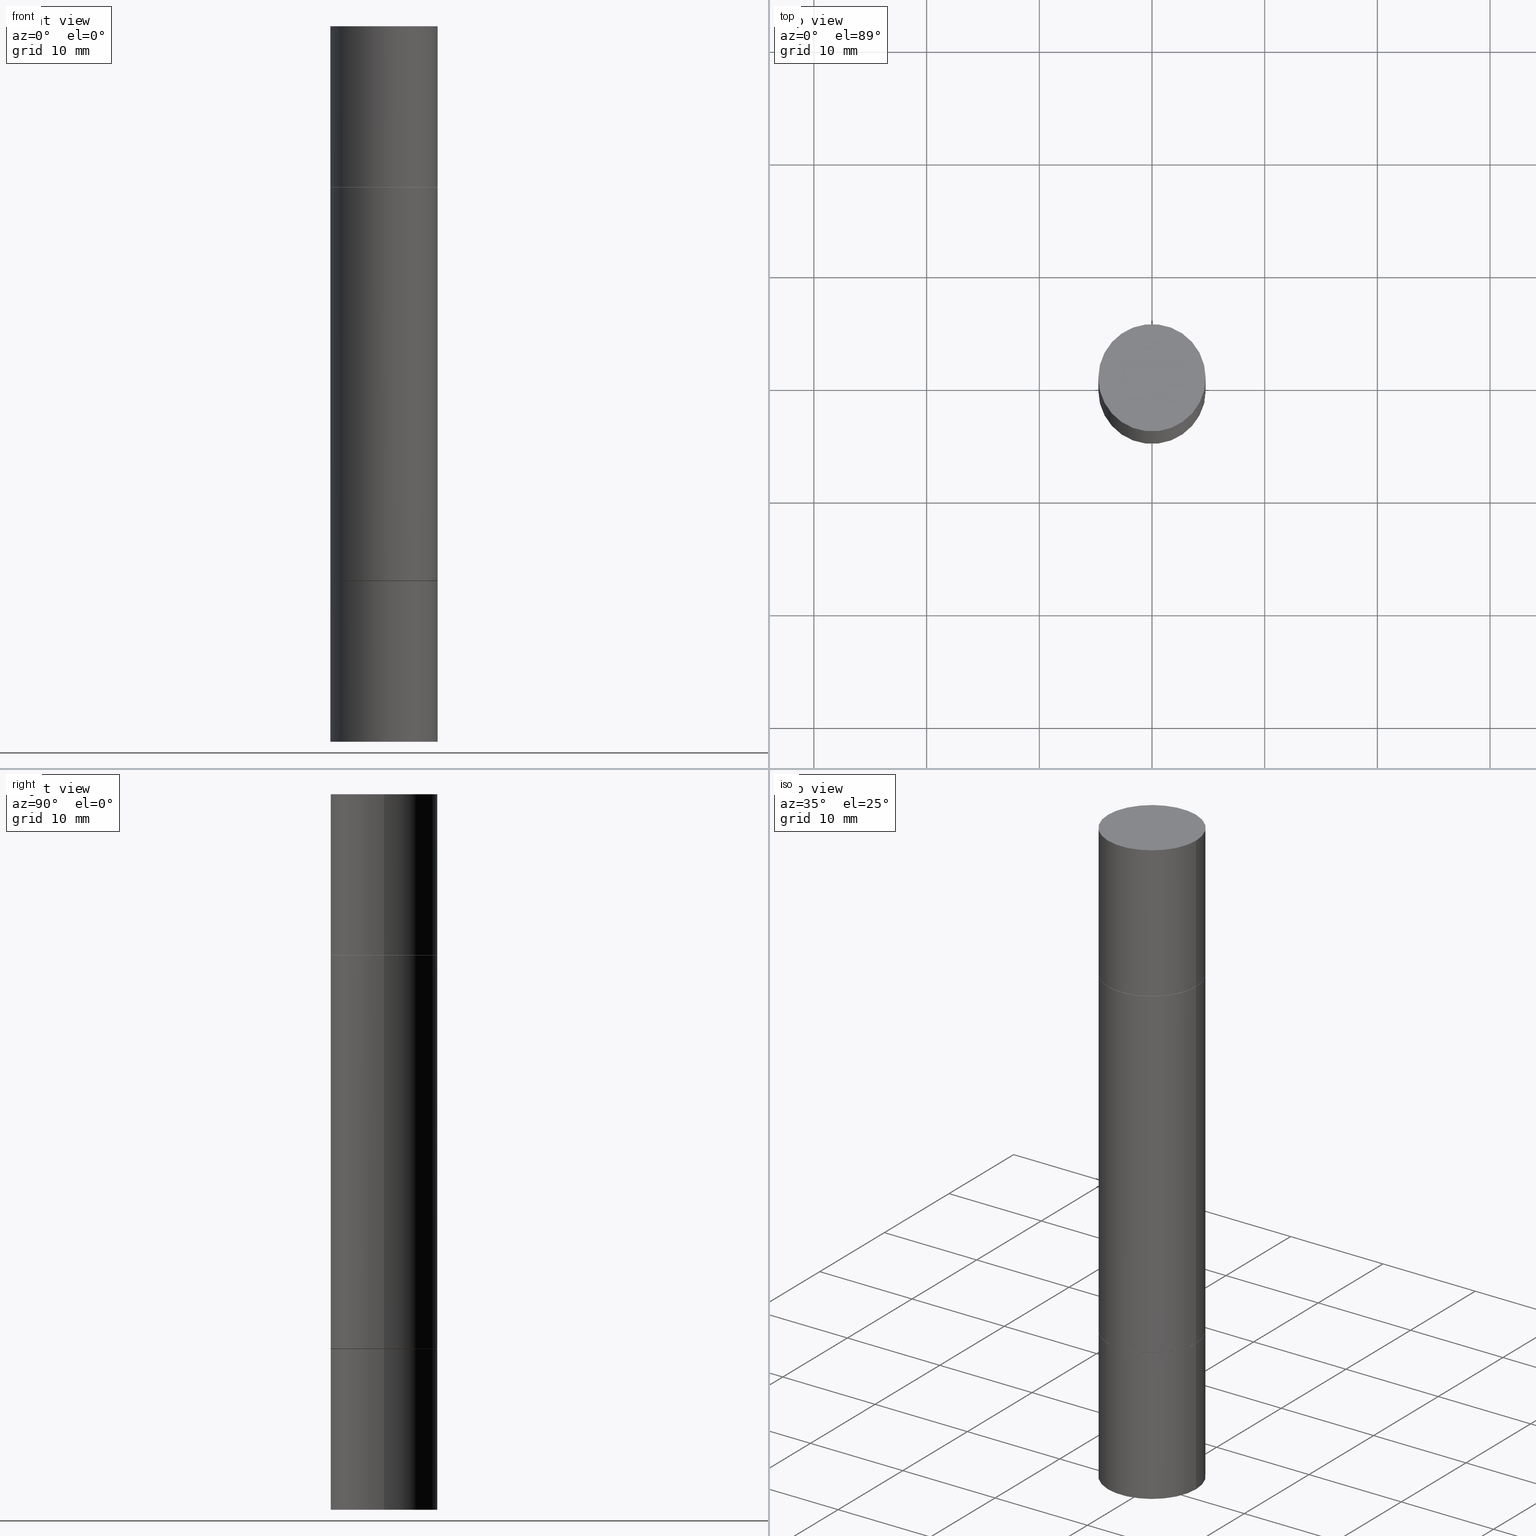
[diagram: canonical four-view strip — front | top / right | iso, engineering-drawing reading convention]
A machine part, canonical four-view strip (front | top / right | iso — engineering-drawing reading convention). The complete STEP part file that produces these views, byte-faithful:
ISO-10303-21;
HEADER;
FILE_DESCRIPTION (( 'STEP AP203' ),
    '1' );
FILE_NAME ('39635.STEP',
    '2024-03-04T15:43:39',
    ( '' ),
    ( '' ),
    'SwSTEP 2.0',
    'SolidWorks 2023',
    '' );
FILE_SCHEMA (( 'CONFIG_CONTROL_DESIGN' ));
ENDSEC;

DATA;
#1 = CC_DESIGN_PERSON_AND_ORGANIZATION_ASSIGNMENT ( #303, #198, ( #389 ) ) ;
#2 = DATE_AND_TIME ( #300, #172 ) ;
#3 = CIRCLE ( 'NONE', #654, 0.1875000000000000278 ) ;
#4 = CC_DESIGN_APPROVAL ( #194, ( #113 ) ) ;
#5 = CARTESIAN_POINT ( 'NONE',  ( 4.739318546386794397E-29, -1.961243070406324635E-15, -0.5619999999999996110 ) ) ;
#6 = DIRECTION ( 'NONE',  ( 1.000000000000000000, -6.982962677686266711E-15, 0.000000000000000000 ) ) ;
#7 = PERSON ( 'UNSPECIFIED', 'UNSPECIFIED', 'UNSPECIFIED', ('UNSPECIFIED'), ('UNSPECIFIED'), ('UNSPECIFIED') ) ;
#8 = DIRECTION ( 'NONE',  ( 1.000000000000000000, -6.982962677686265922E-15, 9.839502134516470631E-33 ) ) ;
#9 = ORIENTED_EDGE ( 'NONE', *, *, #203, .F. ) ;
#10 = ADVANCED_FACE ( 'NONE', ( #595 ), #155, .T. ) ;
#11 = PLANE ( 'NONE',  #585 ) ;
#12 = ORIENTED_EDGE ( 'NONE', *, *, #46, .F. ) ;
#13 = DIRECTION ( 'NONE',  ( -2.445468806185136597E-29, 3.491481338843145583E-15, 1.000000000000000000 ) ) ;
#14 = PERSON_AND_ORGANIZATION_ROLE ( 'creator' ) ;
#15 = CIRCLE ( 'NONE', #492, 0.1875000000000000278 ) ;
#16 = AXIS2_PLACEMENT_3D ( 'NONE', #574, #679, #201 ) ;
#17 = FACE_OUTER_BOUND ( 'NONE', #320, .T. ) ;
#18 = AXIS2_PLACEMENT_3D ( 'NONE', #258, #71, #649 ) ;
#19 = ORIENTED_EDGE ( 'NONE', *, *, #60, .T. ) ;
#20 = LINE ( 'NONE', #220, #400 ) ;
#21 = ADVANCED_FACE ( 'NONE', ( #266 ), #486, .T. ) ;
#22 = DIRECTION ( 'NONE',  ( -2.438088387897959769E-29, -3.492890411551753071E-15, -1.000000000000000000 ) ) ;
#23 = DIRECTION ( 'NONE',  ( 1.000000000000000000, -6.982962677686269077E-15, 0.000000000000000000 ) ) ;
#24 = CARTESIAN_POINT ( 'NONE',  ( 0.000000000000000000, -8.730464687993621641E-15, -2.499999999999999556 ) ) ;
#25 = DIRECTION ( 'NONE',  ( 1.000000000000000000, -6.982962677686266711E-15, 0.000000000000000000 ) ) ;
#26 = DIRECTION ( 'NONE',  ( 0.000000000000000000, 0.000000000000000000, 1.000000000000000000 ) ) ;
#27 = EDGE_CURVE ( 'NONE', #116, #260, #521, .T. ) ;
#28 = DIRECTION ( 'NONE',  ( 2.445468806185136597E-29, 3.492890411551752677E-15, 1.000000000000000000 ) ) ;
#29 = CARTESIAN_POINT ( 'NONE',  ( 1.309305502066222340E-15, 0.1874999999999980294, -0.5620000000000004992 ) ) ;
#30 = AXIS2_PLACEMENT_3D ( 'NONE', #441, #238, #569 ) ;
#31 = ORGANIZATION ( 'UNSPECIFIED', 'UNSPECIFIED', '' ) ;
#32 = AXIS2_PLACEMENT_3D ( 'NONE', #24, #478, #653 ) ;
#33 = DIRECTION ( 'NONE',  ( 1.000000000000000000, -6.982962677686265922E-15, 0.000000000000000000 ) ) ;
#34 = CARTESIAN_POINT ( 'NONE',  ( 4.736873077580609355E-29, -1.964735960817877172E-15, -0.5629999999999997229 ) ) ;
#35 = EDGE_CURVE ( 'NONE', #518, #119, #122, .T. ) ;
#36 = DIRECTION ( 'NONE',  ( -0.7071067811865353603, 7.493145998870309984E-15, 0.7071067811865595631 ) ) ;
#37 = DIRECTION ( 'NONE',  ( 1.000000000000000000, -6.982962677686265922E-15, 4.876176775795935793E-29 ) ) ;
#38 = EDGE_LOOP ( 'NONE', ( #208, #278, #540, #476 ) ) ;
#39 = VERTEX_POINT ( 'NONE', #82 ) ;
#40 = VERTEX_POINT ( 'NONE', #139 ) ;
#41 = ORIENTED_EDGE ( 'NONE', *, *, #163, .T. ) ;
#42 = CIRCLE ( 'NONE', #161, 0.1875000000000000278 ) ;
#43 = VECTOR ( 'NONE', #329, 39.37007874015748854 ) ;
#44 = CARTESIAN_POINT ( 'NONE',  ( 6.113672015462842613E-29, 1.761340885760521790E-18, 5.463695987328526437E-16 ) ) ;
#45 = DIRECTION ( 'NONE',  ( 2.438088387897959769E-29, 3.492890411551753071E-15, 1.000000000000000000 ) ) ;
#46 = EDGE_CURVE ( 'NONE', #601, #40, #138, .T. ) ;
#47 = ORIENTED_EDGE ( 'NONE', *, *, #90, .T. ) ;
#48 = CARTESIAN_POINT ( 'NONE',  ( 0.000000000000000000, -8.730464687993621641E-15, -2.499999999999999556 ) ) ;
#49 = AXIS2_PLACEMENT_3D ( 'NONE', #493, #497, #37 ) ;
#50 = ADVANCED_FACE ( 'NONE', ( #395 ), #504, .T. ) ;
#51 = CIRCLE ( 'NONE', #366, 0.1875000000000000278 ) ;
#52 = CARTESIAN_POINT ( 'NONE',  ( -0.1875000000000000278, -6.415329461342752645E-15, -1.937999999999999945 ) ) ;
#53 = DIRECTION ( 'NONE',  ( 1.000000000000000000, -6.982962677686266711E-15, 0.000000000000000000 ) ) ;
#54 = DIRECTION ( 'NONE',  ( 1.000000000000000000, -6.982962677686266711E-15, 0.000000000000000000 ) ) ;
#55 = ORIENTED_EDGE ( 'NONE', *, *, #222, .F. ) ;
#56 = CARTESIAN_POINT ( 'NONE',  ( 0.1874999999999999167, -4.473849319252078646E-15, -1.249999999999999778 ) ) ;
#57 = CONICAL_SURFACE ( 'NONE', #30, 0.1864999999999999714, 0.7853981633974311816 ) ;
#58 = LOCAL_TIME ( 10, 43, 39.00000000000000000, #349 ) ;
#59 = CLOSED_SHELL ( 'NONE', ( #490, #274, #407, #643 ) ) ;
#60 = EDGE_CURVE ( 'NONE', #549, #333, #135, .T. ) ;
#61 = DIRECTION ( 'NONE',  ( 2.445468806185136597E-29, 3.492890411551752677E-15, 1.000000000000000000 ) ) ;
#62 = EDGE_LOOP ( 'NONE', ( #636, #252 ) ) ;
#63 = ADVANCED_FACE ( 'NONE', ( #560 ), #451, .T. ) ;
#64 = DIRECTION ( 'NONE',  ( -2.445468806185136597E-29, 3.491481338843145583E-15, 1.000000000000000000 ) ) ;
#65 = ORIENTED_EDGE ( 'NONE', *, *, #396, .F. ) ;
#66 = FACE_OUTER_BOUND ( 'NONE', #368, .T. ) ;
#67 = CIRCLE ( 'NONE', #502, 0.1875000000000000278 ) ;
#68 = ADVANCED_FACE ( 'NONE', ( #145 ), #346, .T. ) ;
#69 = AXIS2_PLACEMENT_3D ( 'NONE', #437, #177, #354 ) ;
#70 = APPLICATION_PROTOCOL_DEFINITION ( 'international standard', 'config_control_design', 1994, #673 ) ;
#71 = DIRECTION ( 'NONE',  ( -0.000000000000000000, -3.492185875197449130E-15, -1.000000000000000000 ) ) ;
#72 = VERTEX_POINT ( 'NONE', #408 ) ;
#73 = DIRECTION ( 'NONE',  ( 2.445468806185136597E-29, 3.492890411551752677E-15, 1.000000000000000000 ) ) ;
#74 = DIRECTION ( 'NONE',  ( 1.000000000000000000, -6.982962677686270655E-15, 0.000000000000000000 ) ) ;
#75 = FACE_OUTER_BOUND ( 'NONE', #481, .T. ) ;
#76 = FACE_OUTER_BOUND ( 'NONE', #316, .T. ) ;
#77 = LINE ( 'NONE', #607, #43 ) ;
#78 = PERSON_AND_ORGANIZATION ( #7, #31 ) ;
#79 = PRODUCT_DEFINITION_FORMATION_WITH_SPECIFIED_SOURCE ( 'ANY', '', #389, .NOT_KNOWN. ) ;
#80 = CIRCLE ( 'NONE', #18, 0.1874999999999999167 ) ;
#81 = ORIENTED_EDGE ( 'NONE', *, *, #230, .F. ) ;
#82 = CARTESIAN_POINT ( 'NONE',  ( 0.1875000000000000278, -8.072304855405348046E-15, -1.936999999999999833 ) ) ;
#83 = CARTESIAN_POINT ( 'NONE',  ( -0.1864999999999999714, -5.441328632485429205E-15, -1.937999999999999945 ) ) ;
#84 = CARTESIAN_POINT ( 'NONE',  ( -0.1875000000000000278, 3.066025098218802702E-16, 5.463695987328561936E-16 ) ) ;
#85 = CARTESIAN_POINT ( 'NONE',  ( -0.1864999999999999714, -6.800763900288241472E-16, -0.5619999999999996110 ) ) ;
#86 = EDGE_CURVE ( 'NONE', #337, #307, #107, .T. ) ;
#87 =( NAMED_UNIT ( * ) PLANE_ANGLE_UNIT ( ) SI_UNIT ( $, .RADIAN. ) );
#88 = ORIENTED_EDGE ( 'NONE', *, *, #409, .T. ) ;
#89 = DIRECTION ( 'NONE',  ( 2.445468806185136597E-29, 3.492890411551752677E-15, 1.000000000000000000 ) ) ;
#90 = EDGE_CURVE ( 'NONE', #565, #237, #15, .T. ) ;
#91 = VERTEX_POINT ( 'NONE', #204 ) ;
#92 = CIRCLE ( 'NONE', #261, 0.1875000000000000278 ) ;
#93 = ORIENTED_EDGE ( 'NONE', *, *, #324, .F. ) ;
#94 = DIRECTION ( 'NONE',  ( 2.438088387897959769E-29, 3.492890411551753071E-15, 1.000000000000000000 ) ) ;
#95 = PERSON_AND_ORGANIZATION ( #7, #31 ) ;
#96 = CARTESIAN_POINT ( 'NONE',  ( 4.739318546386794397E-29, -6.766490834678016045E-15, -1.937999999999999945 ) ) ;
#97 = ORIENTED_EDGE ( 'NONE', *, *, #90, .F. ) ;
#98 = CARTESIAN_POINT ( 'NONE',  ( 0.1874999999999999167, -1.003977019005979665E-14, -2.499999999999999556 ) ) ;
#99 = VERTEX_POINT ( 'NONE', #243 ) ;
#100 = CIRCLE ( 'NONE', #479, 0.1875000000000000278 ) ;
#101 = AXIS2_PLACEMENT_3D ( 'NONE', #185, #281, #515 ) ;
#102 = AXIS2_PLACEMENT_3D ( 'NONE', #265, #359, #582 ) ;
#103 = ORIENTED_EDGE ( 'NONE', *, *, #623, .T. ) ;
#104 = CARTESIAN_POINT ( 'NONE',  ( 4.736873077580609355E-29, -1.964735960817877172E-15, -0.5629999999999997229 ) ) ;
#105 = DIRECTION ( 'NONE',  ( 1.000000000000000000, -6.982962677686266711E-15, 0.000000000000000000 ) ) ;
#106 = PLANE ( 'NONE',  #174 ) ;
#107 = LINE ( 'NONE', #356, #296 ) ;
#108 = COORDINATED_UNIVERSAL_TIME_OFFSET ( 5, 0, .BEHIND. ) ;
#109 = EDGE_CURVE ( 'NONE', #181, #590, #253, .T. ) ;
#110 = ORIENTED_EDGE ( 'NONE', *, *, #571, .F. ) ;
#111 = FACE_OUTER_BOUND ( 'NONE', #550, .T. ) ;
#112 = CIRCLE ( 'NONE', #547, 0.1864999999999999714 ) ;
#113 = SECURITY_CLASSIFICATION ( '', '', #489 ) ;
#114 = AXIS2_PLACEMENT_3D ( 'NONE', #367, #432, #218 ) ;
#115 = ADVANCED_FACE ( 'NONE', ( #658 ), #548, .T. ) ;
#116 = VERTEX_POINT ( 'NONE', #165 ) ;
#117 = DIRECTION ( 'NONE',  ( 1.000000000000000000, -6.982962677686269077E-15, 0.000000000000000000 ) ) ;
#118 = DATE_AND_TIME ( #589, #512 ) ;
#119 = VERTEX_POINT ( 'NONE', #209 ) ;
#120 = ADVANCED_FACE ( 'NONE', ( #371 ), #572, .T. ) ;
#121 = CARTESIAN_POINT ( 'NONE',  ( 4.739318546386794397E-29, -6.766490834678016045E-15, -1.937999999999999945 ) ) ;
#122 = LINE ( 'NONE', #382, #225 ) ;
#123 = DIRECTION ( 'NONE',  ( 1.000000000000000000, 0.000000000000000000, 0.000000000000000000 ) ) ;
#124 = CARTESIAN_POINT ( 'NONE',  ( 1.309305502066222340E-15, 0.1874999999999932554, -1.938000000000000389 ) ) ;
#125 = AXIS2_PLACEMENT_3D ( 'NONE', #439, #474, #136 ) ;
#126 = CARTESIAN_POINT ( 'NONE',  ( 4.736873077580609355E-29, -6.762999353339172249E-15, -1.936999999999999833 ) ) ;
#127 = PERSON_AND_ORGANIZATION ( #7, #31 ) ;
#128 = DIRECTION ( 'NONE',  ( 1.000000000000000000, -6.982962677686265922E-15, 4.876176775795935793E-29 ) ) ;
#129 = CARTESIAN_POINT ( 'NONE',  ( 4.739318546386794397E-29, -1.961243070406324635E-15, -0.5619999999999996110 ) ) ;
#130 = DIRECTION ( 'NONE',  ( -0.7071067811865353603, 2.381258160591140710E-15, -0.7071067811865595631 ) ) ;
#131 = ADVANCED_FACE ( 'NONE', ( #17 ), #216, .T. ) ;
#132 = CARTESIAN_POINT ( 'NONE',  ( 4.739318546386794397E-29, -1.961243070406324635E-15, -0.5619999999999996110 ) ) ;
#133 = DIRECTION ( 'NONE',  ( -2.445468806185136597E-29, -3.492890411551752677E-15, -1.000000000000000000 ) ) ;
#134 = DIRECTION ( 'NONE',  ( 1.000000000000000000, -6.982962677686266711E-15, 0.000000000000000000 ) ) ;
#135 = LINE ( 'NONE', #234, #482 ) ;
#136 = DIRECTION ( 'NONE',  ( 0.000000000000000000, 1.000000000000000000, -3.492185875197449524E-15 ) ) ;
#137 = CIRCLE ( 'NONE', #270, 0.1864999999999999714 ) ;
#138 = CIRCLE ( 'NONE', #622, 0.1875000000000000278 ) ;
#139 = CARTESIAN_POINT ( 'NONE',  ( 0.1875000000000000278, -1.307544161180414563E-15, 5.463695987328526437E-16 ) ) ;
#140 = EDGE_LOOP ( 'NONE', ( #618, #65, #634, #645 ) ) ;
#141 = DIRECTION ( 'NONE',  ( -2.445468806185136877E-29, -3.492890411551753071E-15, -1.000000000000000000 ) ) ;
#142 = DIRECTION ( 'NONE',  ( 1.000000000000000000, -6.982962677686266711E-15, 0.000000000000000000 ) ) ;
#143 = EDGE_LOOP ( 'NONE', ( #425, #55 ) ) ;
#144 = CC_DESIGN_DATE_AND_TIME_ASSIGNMENT ( #2, #240, ( #113 ) ) ;
#145 = FACE_OUTER_BOUND ( 'NONE', #471, .T. ) ;
#146 = AXIS2_PLACEMENT_3D ( 'NONE', #34, #659, #25 ) ;
#147 = CLOSED_SHELL ( 'NONE', ( #246, #131, #650, #214, #10, #21, #239, #555 ) ) ;
#148 = DIRECTION ( 'NONE',  ( 2.445468806185136597E-29, 3.492890411551752677E-15, 1.000000000000000000 ) ) ;
#149 = PLANE ( 'NONE',  #663 ) ;
#150 = ADVANCED_BREP_SHAPE_REPRESENTATION ( '39635', ( #564, #576, #552, #551, #579, #401 ), #426 ) ;
#151 = EDGE_CURVE ( 'NONE', #565, #369, #434, .T. ) ;
#152 = PERSON_AND_ORGANIZATION ( #7, #31 ) ;
#153 = ORIENTED_EDGE ( 'NONE', *, *, #199, .T. ) ;
#154 = AXIS2_PLACEMENT_3D ( 'NONE', #566, #269, #176 ) ;
#155 = CONICAL_SURFACE ( 'NONE', #347, 0.1864999999999999714, 0.7853981633974311816 ) ;
#156 = ORIENTED_EDGE ( 'NONE', *, *, #248, .T. ) ;
#157 = CARTESIAN_POINT ( 'NONE',  ( 0.000000000000000000, 0.000000000000000000, 0.000000000000000000 ) ) ;
#158 = PRODUCT_DEFINITION ( 'UNKNOWN', '', #79, #640 ) ;
#159 = ORIENTED_EDGE ( 'NONE', *, *, #376, .F. ) ;
#160 = CARTESIAN_POINT ( 'NONE',  ( 0.1875000000000000278, -3.274041462884052574E-15, -0.5629999999999997229 ) ) ;
#161 = AXIS2_PLACEMENT_3D ( 'NONE', #126, #454, #54 ) ;
#162 = DIRECTION ( 'NONE',  ( -1.000000000000000000, 6.982962677686265922E-15, -4.876176775795935793E-29 ) ) ;
#163 = EDGE_CURVE ( 'NONE', #116, #565, #655, .T. ) ;
#164 = ORIENTED_EDGE ( 'NONE', *, *, #571, .T. ) ;
#165 = CARTESIAN_POINT ( 'NONE',  ( -0.1864999999999999714, -6.800763900288241472E-16, -0.5619999999999996110 ) ) ;
#166 = ORIENTED_EDGE ( 'NONE', *, *, #469, .T. ) ;
#167 = DIRECTION ( 'NONE',  ( -2.445468806185136877E-29, -3.492890411551753071E-15, -1.000000000000000000 ) ) ;
#168 = CARTESIAN_POINT ( 'NONE',  ( -0.1874999999999999722, -3.078008298971767937E-15, -1.936999999999999833 ) ) ;
#169 = APPROVAL_DATE_TIME ( #625, #330 ) ;
#170 = DIRECTION ( 'NONE',  ( 1.000000000000000000, -6.982962677686265922E-15, 0.000000000000000000 ) ) ;
#171 = AXIS2_PLACEMENT_3D ( 'NONE', #5, #358, #415 ) ;
#172 = LOCAL_TIME ( 10, 43, 39.00000000000000000, #108 ) ;
#173 = DIRECTION ( 'NONE',  ( 1.000000000000000000, -6.982962677686269077E-15, 0.000000000000000000 ) ) ;
#174 = AXIS2_PLACEMENT_3D ( 'NONE', #519, #306, #8 ) ;
#175 = EDGE_CURVE ( 'NONE', #260, #237, #77, .T. ) ;
#176 = DIRECTION ( 'NONE',  ( 1.000000000000000000, -6.982962677686265922E-15, 0.000000000000000000 ) ) ;
#177 = DIRECTION ( 'NONE',  ( -2.445468806185136597E-29, -3.492890411551752677E-15, -1.000000000000000000 ) ) ;
#178 = CYLINDRICAL_SURFACE ( 'NONE', #49, 0.1875000000000000278 ) ;
#179 = EDGE_LOOP ( 'NONE', ( #453, #206, #275, #616 ) ) ;
#180 = CC_DESIGN_PERSON_AND_ORGANIZATION_ASSIGNMENT ( #78, #498, ( #79 ) ) ;
#181 = VERTEX_POINT ( 'NONE', #652 ) ;
#182 = DIRECTION ( 'NONE',  ( 1.000000000000000000, -6.982962677686269077E-15, 0.000000000000000000 ) ) ;
#183 = ORIENTED_EDGE ( 'NONE', *, *, #27, .T. ) ;
#184 = ORIENTED_EDGE ( 'NONE', *, *, #287, .F. ) ;
#185 = CARTESIAN_POINT ( 'NONE',  ( 3.056836007731420185E-29, -4.364351673553931682E-15, -1.249999999999999778 ) ) ;
#186 = AXIS2_PLACEMENT_3D ( 'NONE', #418, #215, #173 ) ;
#187 = FACE_OUTER_BOUND ( 'NONE', #207, .T. ) ;
#188 = AXIS2_PLACEMENT_3D ( 'NONE', #545, #224, #660 ) ;
#189 = DIRECTION ( 'NONE',  ( -2.445468806185136597E-29, -3.492890411551752677E-15, -1.000000000000000000 ) ) ;
#190 = EDGE_CURVE ( 'NONE', #237, #565, #609, .T. ) ;
#191 = CIRCLE ( 'NONE', #114, 0.1875000000000000278 ) ;
#192 = VERTEX_POINT ( 'NONE', #56 ) ;
#193 = ORIENTED_EDGE ( 'NONE', *, *, #611, .F. ) ;
#194 = APPROVAL ( #462, 'UNSPECIFIED' ) ;
#195 = DIRECTION ( 'NONE',  ( -2.445468806185136597E-29, -3.492890411551752677E-15, -1.000000000000000000 ) ) ;
#196 = APPROVAL_ROLE ( '' ) ;
#197 = VECTOR ( 'NONE', #420, 39.37007874015748143 ) ;
#198 = PERSON_AND_ORGANIZATION_ROLE ( 'design_owner' ) ;
#199 = EDGE_CURVE ( 'NONE', #648, #72, #100, .T. ) ;
#200 = CALENDAR_DATE ( 2024, 4, 3 ) ;
#201 = DIRECTION ( 'NONE',  ( 1.000000000000000000, -6.982962677686265922E-15, 4.876176775795935793E-29 ) ) ;
#202 = AXIS2_PLACEMENT_3D ( 'NONE', #615, #302, #142 ) ;
#203 = EDGE_CURVE ( 'NONE', #72, #648, #191, .T. ) ;
#204 = CARTESIAN_POINT ( 'NONE',  ( -0.1875000000000000278, 3.066025098218802702E-16, -0.5619999999999996110 ) ) ;
#205 = DIRECTION ( 'NONE',  ( 1.000000000000000000, -6.982962677686269077E-15, 0.000000000000000000 ) ) ;
#206 = ORIENTED_EDGE ( 'NONE', *, *, #464, .T. ) ;
#207 = EDGE_LOOP ( 'NONE', ( #348, #93 ) ) ;
#208 = ORIENTED_EDGE ( 'NONE', *, *, #516, .F. ) ;
#209 = CARTESIAN_POINT ( 'NONE',  ( -0.1874999999999999167, -1.878200442603741470E-15, -1.249999999999999778 ) ) ;
#210 = CARTESIAN_POINT ( 'NONE',  ( 0.1864999999999999714, -3.263565609794813629E-15, -0.5619999999999996110 ) ) ;
#211 = VECTOR ( 'NONE', #167, 39.37007874015748143 ) ;
#212 = CC_DESIGN_SECURITY_CLASSIFICATION ( #113, ( #79 ) ) ;
#213 = VECTOR ( 'NONE', #130, 39.37007874015748854 ) ;
#214 = ADVANCED_FACE ( 'NONE', ( #314 ), #106, .F. ) ;
#215 = DIRECTION ( 'NONE',  ( 2.445468806185136597E-29, 3.492890411551752677E-15, 1.000000000000000000 ) ) ;
#216 = CYLINDRICAL_SURFACE ( 'NONE', #325, 0.1874999999999999167 ) ;
#217 = ORIENTED_EDGE ( 'NONE', *, *, #86, .T. ) ;
#218 = DIRECTION ( 'NONE',  ( 1.000000000000000000, -6.982962677686266711E-15, 0.000000000000000000 ) ) ;
#219 = ORIENTED_EDGE ( 'NONE', *, *, #510, .F. ) ;
#220 = CARTESIAN_POINT ( 'NONE',  ( 0.1864999999999999714, -3.263565609794813629E-15, -0.5619999999999996110 ) ) ;
#221 = DIRECTION ( 'NONE',  ( 1.000000000000000000, -6.982962677686265922E-15, 9.839502134516470631E-33 ) ) ;
#222 = EDGE_CURVE ( 'NONE', #570, #257, #677, .T. ) ;
#223 = CIRCLE ( 'NONE', #154, 0.1875000000000000278 ) ;
#224 = DIRECTION ( 'NONE',  ( 2.445468806185136597E-29, 3.492890411551752677E-15, 1.000000000000000000 ) ) ;
#225 = VECTOR ( 'NONE', #544, 39.37007874015748143 ) ;
#226 = CC_DESIGN_PERSON_AND_ORGANIZATION_ASSIGNMENT ( #360, #289, ( #113 ) ) ;
#227 = ORIENTED_EDGE ( 'NONE', *, *, #510, .T. ) ;
#228 = LINE ( 'NONE', #438, #435 ) ;
#229 = ORIENTED_EDGE ( 'NONE', *, *, #175, .F. ) ;
#230 = EDGE_CURVE ( 'NONE', #590, #181, #51, .T. ) ;
#231 = CARTESIAN_POINT ( 'NONE',  ( 4.736873077580609355E-29, -6.762999353339172249E-15, -1.936999999999999833 ) ) ;
#232 = FACE_OUTER_BOUND ( 'NONE', #514, .T. ) ;
#233 = CIRCLE ( 'NONE', #171, 0.1875000000000000278 ) ;
#234 = CARTESIAN_POINT ( 'NONE',  ( -0.1875000000000000278, -7.444121313411457895E-15, -2.499999999999999556 ) ) ;
#235 = APPROVAL_PERSON_ORGANIZATION ( #152, #379, #352 ) ;
#236 = AXIS2_PLACEMENT_3D ( 'NONE', #96, #351, #414 ) ;
#237 = VERTEX_POINT ( 'NONE', #473 ) ;
#238 = DIRECTION ( 'NONE',  ( -2.445468806185136597E-29, -3.492890411551752677E-15, -1.000000000000000000 ) ) ;
#239 = ADVANCED_FACE ( 'NONE', ( #66 ), #460, .T. ) ;
#240 = DATE_TIME_ROLE ( 'classification_date' ) ;
#241 = DIRECTION ( 'NONE',  ( -2.445468806185136597E-29, -3.492890411551752677E-15, -1.000000000000000000 ) ) ;
#242 = LINE ( 'NONE', #98, #322 ) ;
#243 = CARTESIAN_POINT ( 'NONE',  ( 0.1875000000000000278, -3.270548572472500038E-15, -0.5619999999999996110 ) ) ;
#244 = AXIS2_PLACEMENT_3D ( 'NONE', #48, #241, #463 ) ;
#245 = AXIS2_PLACEMENT_3D ( 'NONE', #121, #13, #117 ) ;
#246 = ADVANCED_FACE ( 'NONE', ( #641 ), #644, .T. ) ;
#247 = DIRECTION ( 'NONE',  ( -2.445468806185136597E-29, 3.491481338843145583E-15, 1.000000000000000000 ) ) ;
#248 = EDGE_CURVE ( 'NONE', #119, #192, #80, .T. ) ;
#249 = EDGE_LOOP ( 'NONE', ( #9, #448 ) ) ;
#250 = DIRECTION ( 'NONE',  ( 1.000000000000000000, -6.982962677686269077E-15, 0.000000000000000000 ) ) ;
#251 = VECTOR ( 'NONE', #537, 39.37007874015748143 ) ;
#252 = ORIENTED_EDGE ( 'NONE', *, *, #230, .T. ) ;
#253 = CIRCLE ( 'NONE', #236, 0.1875000000000000278 ) ;
#254 = CARTESIAN_POINT ( 'NONE',  ( 0.1864999999999999714, -3.263565609794813629E-15, -0.5619999999999996110 ) ) ;
#255 = CARTESIAN_POINT ( 'NONE',  ( -0.1875000000000000278, 1.332267629550188046E-15, -9.223003294227947991E-30 ) ) ;
#256 = LINE ( 'NONE', #587, #599 ) ;
#257 = VERTEX_POINT ( 'NONE', #377 ) ;
#258 = CARTESIAN_POINT ( 'NONE',  ( 3.056836007731420185E-29, -4.364351673553931682E-15, -1.249999999999999778 ) ) ;
#259 = DIRECTION ( 'NONE',  ( 1.000000000000000000, -6.982962677686269077E-15, 0.000000000000000000 ) ) ;
#260 = VERTEX_POINT ( 'NONE', #210 ) ;
#261 = AXIS2_PLACEMENT_3D ( 'NONE', #328, #539, #170 ) ;
#262 = MECHANICAL_CONTEXT ( 'NONE', #673, 'mechanical' ) ;
#263 = AXIS2_PLACEMENT_3D ( 'NONE', #669, #397, #339 ) ;
#264 = DIRECTION ( 'NONE',  ( 1.000000000000000000, -6.982962677686269077E-15, 0.000000000000000000 ) ) ;
#265 = CARTESIAN_POINT ( 'NONE',  ( 1.309305502066236145E-15, 0.1874999999999999722, 0.000000000000000000 ) ) ;
#266 = FACE_OUTER_BOUND ( 'NONE', #666, .T. ) ;
#267 = DIRECTION ( 'NONE',  ( -1.000000000000000000, 6.982962677686265922E-15, -9.839502134516470631E-33 ) ) ;
#268 = ADVANCED_FACE ( 'NONE', ( #319 ), #597, .F. ) ;
#269 = DIRECTION ( 'NONE',  ( 2.445468806185136597E-29, 3.492890411551752677E-15, 1.000000000000000000 ) ) ;
#270 = AXIS2_PLACEMENT_3D ( 'NONE', #129, #541, #264 ) ;
#271 = CARTESIAN_POINT ( 'NONE',  ( 0.1864999999999999714, -8.068813374066505039E-15, -1.937999999999999945 ) ) ;
#272 = LINE ( 'NONE', #455, #211 ) ;
#273 = FACE_OUTER_BOUND ( 'NONE', #671, .T. ) ;
#274 = ADVANCED_FACE ( 'NONE', ( #534 ), #416, .T. ) ;
#275 = ORIENTED_EDGE ( 'NONE', *, *, #469, .F. ) ;
#276 = VERTEX_POINT ( 'NONE', #160 ) ;
#277 = ORIENTED_EDGE ( 'NONE', *, *, #680, .T. ) ;
#278 = ORIENTED_EDGE ( 'NONE', *, *, #35, .T. ) ;
#279 = ADVANCED_FACE ( 'NONE', ( #111 ), #637, .T. ) ;
#280 = ORIENTED_EDGE ( 'NONE', *, *, #429, .F. ) ;
#281 = DIRECTION ( 'NONE',  ( -0.000000000000000000, -3.492185875197449130E-15, -1.000000000000000000 ) ) ;
#282 = CIRCLE ( 'NONE', #146, 0.1875000000000000278 ) ;
#283 = LOCAL_TIME ( 10, 43, 39.00000000000000000, #404 ) ;
#284 = DIRECTION ( 'NONE',  ( 1.000000000000000000, -6.982962677686269077E-15, 0.000000000000000000 ) ) ;
#285 = EDGE_LOOP ( 'NONE', ( #12, #475, #592, #193 ) ) ;
#286 = DIRECTION ( 'NONE',  ( 1.000000000000000000, -6.982962677686266711E-15, 0.000000000000000000 ) ) ;
#287 = EDGE_CURVE ( 'NONE', #549, #337, #92, .T. ) ;
#288 = ORIENTED_EDGE ( 'NONE', *, *, #477, .T. ) ;
#289 = PERSON_AND_ORGANIZATION_ROLE ( 'classification_officer' ) ;
#290 = CARTESIAN_POINT ( 'NONE',  ( 0.1875000000000000278, -3.270548572472500038E-15, -0.5619999999999996110 ) ) ;
#291 = PLANE ( 'NONE',  #533 ) ;
#292 = APPROVAL_STATUS ( 'not_yet_approved' ) ;
#293 = ORIENTED_EDGE ( 'NONE', *, *, #310, .F. ) ;
#294 = CC_DESIGN_PERSON_AND_ORGANIZATION_ASSIGNMENT ( #127, #538, ( #79 ) ) ;
#295 = CARTESIAN_POINT ( 'NONE',  ( 1.309305502066236145E-15, 0.1874999999999912847, -2.500000000000000444 ) ) ;
#296 = VECTOR ( 'NONE', #305, 39.37007874015748143 ) ;
#297 = VERTEX_POINT ( 'NONE', #254 ) ;
#298 = AXIS2_PLACEMENT_3D ( 'NONE', #29, #532, #267 ) ;
#299 = ADVANCED_FACE ( 'NONE', ( #187 ), #149, .F. ) ;
#300 = CALENDAR_DATE ( 2024, 4, 3 ) ;
#301 = CARTESIAN_POINT ( 'NONE',  ( 4.736873077580609355E-29, -1.964735960817877172E-15, -0.5629999999999997229 ) ) ;
#302 = DIRECTION ( 'NONE',  ( 2.445468806185136597E-29, 3.492890411551752677E-15, 1.000000000000000000 ) ) ;
#303 = PERSON_AND_ORGANIZATION ( #7, #31 ) ;
#304 = APPROVAL_DATE_TIME ( #676, #194 ) ;
#305 = DIRECTION ( 'NONE',  ( -2.445468806185136877E-29, -3.492890411551753071E-15, -1.000000000000000000 ) ) ;
#306 = DIRECTION ( 'NONE',  ( -2.438088387897959769E-29, -3.492890411551753071E-15, -1.000000000000000000 ) ) ;
#307 = VERTEX_POINT ( 'NONE', #290 ) ;
#308 = AXIS2_PLACEMENT_3D ( 'NONE', #411, #399, #105 ) ;
#309 = DIRECTION ( 'NONE',  ( -2.445468806185136597E-29, 3.491481338843145583E-15, 1.000000000000000000 ) ) ;
#310 = EDGE_CURVE ( 'NONE', #638, #297, #444, .T. ) ;
#311 = DIRECTION ( 'NONE',  ( -2.445468806185136877E-29, -3.492890411551753071E-15, -1.000000000000000000 ) ) ;
#312 = ORIENTED_EDGE ( 'NONE', *, *, #449, .T. ) ;
#313 = DIRECTION ( 'NONE',  ( -2.445468806185136597E-29, -3.492890411551752677E-15, -1.000000000000000000 ) ) ;
#314 = FACE_OUTER_BOUND ( 'NONE', #499, .T. ) ;
#315 = APPROVAL_DATE_TIME ( #118, #379 ) ;
#316 = EDGE_LOOP ( 'NONE', ( #219, #394 ) ) ;
#317 = EDGE_LOOP ( 'NONE', ( #184, #19, #594, #375 ) ) ;
#318 = DIRECTION ( 'NONE',  ( 1.000000000000000000, -6.982962677686270655E-15, 0.000000000000000000 ) ) ;
#319 = FACE_OUTER_BOUND ( 'NONE', #62, .T. ) ;
#320 = EDGE_LOOP ( 'NONE', ( #97, #393, #365, #613 ) ) ;
#321 = LINE ( 'NONE', #255, #197 ) ;
#322 = VECTOR ( 'NONE', #141, 39.37007874015748143 ) ;
#323 = DIRECTION ( 'NONE',  ( -1.000000000000000000, 6.982962677686265922E-15, -4.876176775795935793E-29 ) ) ;
#324 = EDGE_CURVE ( 'NONE', #333, #307, #424, .T. ) ;
#325 = AXIS2_PLACEMENT_3D ( 'NONE', #647, #189, #74 ) ;
#326 = PLANE ( 'NONE',  #298 ) ;
#327 = CARTESIAN_POINT ( 'NONE',  ( 0.000000000000000000, 0.000000000000000000, 0.000000000000000000 ) ) ;
#328 = CARTESIAN_POINT ( 'NONE',  ( 6.113672015462842613E-29, 1.761340885760521790E-18, 5.463695987328526437E-16 ) ) ;
#329 = DIRECTION ( 'NONE',  ( 0.7071067811865353603, -7.407546758114202791E-15, -0.7071067811865595631 ) ) ;
#330 = APPROVAL ( #292, 'UNSPECIFIED' ) ;
#331 = ORIENTED_EDGE ( 'NONE', *, *, #376, .T. ) ;
#332 = LINE ( 'NONE', #380, #251 ) ;
#333 = VERTEX_POINT ( 'NONE', #522 ) ;
#334 = DIRECTION ( 'NONE',  ( 1.000000000000000000, -6.982962677686266711E-15, 0.000000000000000000 ) ) ;
#335 = AXIS2_PLACEMENT_3D ( 'NONE', #526, #309, #205 ) ;
#336 = EDGE_CURVE ( 'NONE', #648, #590, #321, .T. ) ;
#337 = VERTEX_POINT ( 'NONE', #364 ) ;
#338 = DIRECTION ( 'NONE',  ( -2.445468806185136597E-29, -3.492890411551752677E-15, -1.000000000000000000 ) ) ;
#339 = DIRECTION ( 'NONE',  ( 1.000000000000000000, -6.982962677686269077E-15, 0.000000000000000000 ) ) ;
#340 = ORIENTED_EDGE ( 'NONE', *, *, #500, .F. ) ;
#341 = CARTESIAN_POINT ( 'NONE',  ( -0.1875000000000000278, -6.783925862357143136E-16, -0.5629999999999997229 ) ) ;
#342 = DIMENSIONAL_EXPONENTS ( 1.000000000000000000, 0.000000000000000000, 0.000000000000000000, 0.000000000000000000, 0.000000000000000000, 0.000000000000000000, 0.000000000000000000 ) ;
#343 =( CONVERSION_BASED_UNIT ( 'INCH', #617 ) LENGTH_UNIT ( ) NAMED_UNIT ( #342 ) );
#344 = CARTESIAN_POINT ( 'NONE',  ( -0.1864999999999999714, -5.436030178137207592E-15, -1.937999999999999945 ) ) ;
#345 = EDGE_CURVE ( 'NONE', #601, #91, #256, .T. ) ;
#346 = CYLINDRICAL_SURFACE ( 'NONE', #69, 0.1874999999999999167 ) ;
#347 = AXIS2_PLACEMENT_3D ( 'NONE', #433, #528, #259 ) ;
#348 = ORIENTED_EDGE ( 'NONE', *, *, #531, .F. ) ;
#349 = COORDINATED_UNIVERSAL_TIME_OFFSET ( 5, 0, .BEHIND. ) ;
#350 = DATE_AND_TIME ( #406, #468 ) ;
#351 = DIRECTION ( 'NONE',  ( -2.445468806185136597E-29, 3.491481338843145583E-15, 1.000000000000000000 ) ) ;
#352 = APPROVAL_ROLE ( '' ) ;
#353 = APPROVAL_ROLE ( '' ) ;
#354 = DIRECTION ( 'NONE',  ( 1.000000000000000000, -6.982962677686270655E-15, 0.000000000000000000 ) ) ;
#355 = ADVANCED_FACE ( 'NONE', ( #524 ), #11, .F. ) ;
#356 = CARTESIAN_POINT ( 'NONE',  ( 0.1875000000000000278, -1.003977019005979665E-14, -2.499999999999999556 ) ) ;
#357 = CIRCLE ( 'NONE', #202, 0.1875000000000000278 ) ;
#358 = DIRECTION ( 'NONE',  ( 2.445468806185136597E-29, 3.492890411551752677E-15, 1.000000000000000000 ) ) ;
#359 = DIRECTION ( 'NONE',  ( 2.438088387897959769E-29, 3.492890411551753071E-15, 1.000000000000000000 ) ) ;
#360 = PERSON_AND_ORGANIZATION ( #7, #31 ) ;
#361 = FACE_OUTER_BOUND ( 'NONE', #285, .T. ) ;
#362 = DIRECTION ( 'NONE',  ( -2.445468806185136597E-29, 3.491481338843145583E-15, 1.000000000000000000 ) ) ;
#363 = ADVANCED_FACE ( 'NONE', ( #75 ), #543, .F. ) ;
#364 = CARTESIAN_POINT ( 'NONE',  ( 0.1875000000000000278, -1.307544161180414563E-15, 5.463695987328526437E-16 ) ) ;
#365 = ORIENTED_EDGE ( 'NONE', *, *, #483, .T. ) ;
#366 = AXIS2_PLACEMENT_3D ( 'NONE', #523, #651, #593 ) ;
#367 = CARTESIAN_POINT ( 'NONE',  ( 6.113672015462842613E-29, -8.728703347107864943E-15, -2.500000000000000000 ) ) ;
#368 = EDGE_LOOP ( 'NONE', ( #588, #509, #445, #665 ) ) ;
#369 = VERTEX_POINT ( 'NONE', #168 ) ;
#370 = ORIENTED_EDGE ( 'NONE', *, *, #190, .F. ) ;
#371 = FACE_OUTER_BOUND ( 'NONE', #249, .T. ) ;
#372 = CARTESIAN_POINT ( 'NONE',  ( 4.739318546386794397E-29, -6.766490834678016045E-15, -1.937999999999999945 ) ) ;
#373 = CARTESIAN_POINT ( 'NONE',  ( -0.1875000000000000278, -6.415329461342752645E-15, -2.500000000000000000 ) ) ;
#374 = DIRECTION ( 'NONE',  ( -2.445468806185136597E-29, 3.491481338843145583E-15, 1.000000000000000000 ) ) ;
#375 = ORIENTED_EDGE ( 'NONE', *, *, #86, .F. ) ;
#376 = EDGE_CURVE ( 'NONE', #72, #181, #332, .T. ) ;
#377 = CARTESIAN_POINT ( 'NONE',  ( 0.1864999999999999714, -8.068813374066505039E-15, -1.937999999999999945 ) ) ;
#378 = DIRECTION ( 'NONE',  ( 0.7071067811865353603, -7.407546758114202791E-15, -0.7071067811865595631 ) ) ;
#379 = APPROVAL ( #626, 'UNSPECIFIED' ) ;
#380 = CARTESIAN_POINT ( 'NONE',  ( 0.1875000000000000278, -1.309305502066175008E-15, 9.142831454617381013E-30 ) ) ;
#381 = CARTESIAN_POINT ( 'NONE',  ( 4.739318546386794397E-29, -1.961243070406324635E-15, -0.5619999999999996110 ) ) ;
#382 = CARTESIAN_POINT ( 'NONE',  ( -0.1874999999999999167, -7.444121313411459473E-15, -2.499999999999999556 ) ) ;
#383 = DIRECTION ( 'NONE',  ( -0.7071067811865353603, 2.381258160591140710E-15, -0.7071067811865595631 ) ) ;
#384 = EDGE_CURVE ( 'NONE', #91, #99, #459, .T. ) ;
#385 = ORIENTED_EDGE ( 'NONE', *, *, #27, .F. ) ;
#386 = DIRECTION ( 'NONE',  ( -2.445468806185136877E-29, -3.492890411551753071E-15, -1.000000000000000000 ) ) ;
#387 = CLOSED_SHELL ( 'NONE', ( #115, #50, #363, #355, #600, #68 ) ) ;
#388 = ORIENTED_EDGE ( 'NONE', *, *, #336, .F. ) ;
#389 = PRODUCT ( '39635', '39635', '', ( #262 ) ) ;
#390 = AXIS2_PLACEMENT_3D ( 'NONE', #443, #662, #134 ) ;
#391 = EDGE_LOOP ( 'NONE', ( #605, #413 ) ) ;
#392 = AXIS2_PLACEMENT_3D ( 'NONE', #124, #422, #323 ) ;
#393 = ORIENTED_EDGE ( 'NONE', *, *, #151, .T. ) ;
#394 = ORIENTED_EDGE ( 'NONE', *, *, #384, .F. ) ;
#395 = FACE_OUTER_BOUND ( 'NONE', #596, .T. ) ;
#396 = EDGE_CURVE ( 'NONE', #260, #116, #137, .T. ) ;
#397 = DIRECTION ( 'NONE',  ( 2.445468806185136597E-29, 3.492890411551752677E-15, 1.000000000000000000 ) ) ;
#398 = CARTESIAN_POINT ( 'NONE',  ( 1.309305502066236145E-15, 0.1874999999999999722, 0.000000000000000000 ) ) ;
#399 = DIRECTION ( 'NONE',  ( -2.445468806185136597E-29, -3.492890411551752677E-15, -1.000000000000000000 ) ) ;
#400 = VECTOR ( 'NONE', #378, 39.37007874015748854 ) ;
#401 = AXIS2_PLACEMENT_3D ( 'NONE', #327, #26, #123 ) ;
#402 = APPLICATION_CONTEXT ( 'configuration controlled 3d designs of mechanical parts and assemblies' ) ;
#403 = CLOSED_SHELL ( 'NONE', ( #63, #670, #299, #542 ) ) ;
#404 = COORDINATED_UNIVERSAL_TIME_OFFSET ( 5, 0, .BEHIND. ) ;
#405 = CARTESIAN_POINT ( 'NONE',  ( -0.1875000000000000278, 3.066025098218802702E-16, 5.463695987328561936E-16 ) ) ;
#406 = CALENDAR_DATE ( 2024, 4, 3 ) ;
#407 = ADVANCED_FACE ( 'NONE', ( #76 ), #326, .F. ) ;
#408 = CARTESIAN_POINT ( 'NONE',  ( 0.1875000000000000278, -1.003800884917403995E-14, -2.500000000000000000 ) ) ;
#409 = EDGE_CURVE ( 'NONE', #40, #601, #511, .T. ) ;
#410 = VECTOR ( 'NONE', #36, 39.37007874015748854 ) ;
#411 = CARTESIAN_POINT ( 'NONE',  ( 0.000000000000000000, -8.730464687993621641E-15, -2.499999999999999556 ) ) ;
#412 = AXIS2_PLACEMENT_3D ( 'NONE', #606, #338, #603 ) ;
#413 = ORIENTED_EDGE ( 'NONE', *, *, #310, .T. ) ;
#414 = DIRECTION ( 'NONE',  ( 1.000000000000000000, -6.982962677686266711E-15, 0.000000000000000000 ) ) ;
#415 = DIRECTION ( 'NONE',  ( 1.000000000000000000, -6.982962677686266711E-15, 0.000000000000000000 ) ) ;
#416 = PLANE ( 'NONE',  #102 ) ;
#417 = EDGE_CURVE ( 'NONE', #257, #39, #598, .T. ) ;
#418 = CARTESIAN_POINT ( 'NONE',  ( 4.739318546386794397E-29, -1.961243070406324635E-15, -0.5619999999999996110 ) ) ;
#419 = DIRECTION ( 'NONE',  ( 2.438088387897960049E-29, -3.491481338843145188E-15, -1.000000000000000000 ) ) ;
#420 = DIRECTION ( 'NONE',  ( -2.445468806185136877E-29, 3.491481338843145188E-15, 1.000000000000000000 ) ) ;
#421 = EDGE_LOOP ( 'NONE', ( #88, #581 ) ) ;
#422 = DIRECTION ( 'NONE',  ( 2.438088387897960049E-29, -3.491481338843145188E-15, -1.000000000000000000 ) ) ;
#423 = COORDINATED_UNIVERSAL_TIME_OFFSET ( 5, 0, .BEHIND. ) ;
#424 = CIRCLE ( 'NONE', #467, 0.1875000000000000278 ) ;
#425 = ORIENTED_EDGE ( 'NONE', *, *, #591, .F. ) ;
#426 =( GEOMETRIC_REPRESENTATION_CONTEXT ( 3 ) GLOBAL_UNCERTAINTY_ASSIGNED_CONTEXT ( ( #675 ) ) GLOBAL_UNIT_ASSIGNED_CONTEXT ( ( #343, #87, #559 ) ) REPRESENTATION_CONTEXT ( 'NONE', 'WORKASPACE' ) );
#427 = VECTOR ( 'NONE', #501, 39.37007874015748143 ) ;
#428 = DIRECTION ( 'NONE',  ( 1.000000000000000000, -6.982962677686266711E-15, 0.000000000000000000 ) ) ;
#429 = EDGE_CURVE ( 'NONE', #638, #518, #228, .T. ) ;
#430 = ORIENTED_EDGE ( 'NONE', *, *, #345, .F. ) ;
#431 = CC_DESIGN_PERSON_AND_ORGANIZATION_ASSIGNMENT ( #527, #14, ( #158 ) ) ;
#432 = DIRECTION ( 'NONE',  ( -2.445468806185136597E-29, 3.491481338843145583E-15, 1.000000000000000000 ) ) ;
#433 = CARTESIAN_POINT ( 'NONE',  ( 4.739318546386794397E-29, -1.961243070406324635E-15, -0.5619999999999996110 ) ) ;
#434 = LINE ( 'NONE', #556, #427 ) ;
#435 = VECTOR ( 'NONE', #383, 39.37007874015748854 ) ;
#436 = CC_DESIGN_APPROVAL ( #379, ( #158 ) ) ;
#437 = CARTESIAN_POINT ( 'NONE',  ( 0.000000000000000000, -8.730464687993621641E-15, -2.499999999999999556 ) ) ;
#438 = CARTESIAN_POINT ( 'NONE',  ( -0.1864999999999999714, -6.817601938219341781E-16, -0.5619999999999996110 ) ) ;
#439 = CARTESIAN_POINT ( 'NONE',  ( 0.000000000000000000, 0.000000000000000000, -1.249999999999999778 ) ) ;
#440 = LINE ( 'NONE', #83, #410 ) ;
#441 = CARTESIAN_POINT ( 'NONE',  ( 4.739318546386794397E-29, -1.961243070406324635E-15, -0.5619999999999996110 ) ) ;
#442 = ORIENTED_EDGE ( 'NONE', *, *, #203, .T. ) ;
#443 = CARTESIAN_POINT ( 'NONE',  ( 0.000000000000000000, -8.730464687993621641E-15, -2.499999999999999556 ) ) ;
#444 = CIRCLE ( 'NONE', #263, 0.1864999999999999714 ) ;
#445 = ORIENTED_EDGE ( 'NONE', *, *, #417, .T. ) ;
#446 = DIRECTION ( 'NONE',  ( -2.445468806185136877E-29, -3.492890411551753071E-15, -1.000000000000000000 ) ) ;
#447 = DIRECTION ( 'NONE',  ( -1.000000000000000000, 6.982962677686265922E-15, -9.839502134516470631E-33 ) ) ;
#448 = ORIENTED_EDGE ( 'NONE', *, *, #199, .F. ) ;
#449 = EDGE_CURVE ( 'NONE', #276, #518, #282, .T. ) ;
#450 = FACE_OUTER_BOUND ( 'NONE', #535, .T. ) ;
#451 = CYLINDRICAL_SURFACE ( 'NONE', #586, 0.1875000000000000278 ) ;
#452 = ORIENTED_EDGE ( 'NONE', *, *, #449, .F. ) ;
#453 = ORIENTED_EDGE ( 'NONE', *, *, #591, .T. ) ;
#454 = DIRECTION ( 'NONE',  ( -2.445468806185136597E-29, 3.491481338843145583E-15, 1.000000000000000000 ) ) ;
#455 = CARTESIAN_POINT ( 'NONE',  ( 0.1875000000000000278, -1.003977019005979665E-14, -2.499999999999999556 ) ) ;
#456 = CARTESIAN_POINT ( 'NONE',  ( 1.309305502066222340E-15, 0.1874999999999980294, -0.5620000000000004992 ) ) ;
#457 = DIRECTION ( 'NONE',  ( -1.000000000000000000, 6.982962677686265922E-15, -9.839502134516470631E-33 ) ) ;
#458 = CALENDAR_DATE ( 2024, 4, 3 ) ;
#459 = CIRCLE ( 'NONE', #661, 0.1875000000000000278 ) ;
#460 = CONICAL_SURFACE ( 'NONE', #245, 0.1864999999999999714, 0.7853981633974311816 ) ;
#461 = ORIENTED_EDGE ( 'NONE', *, *, #60, .F. ) ;
#462 = APPROVAL_STATUS ( 'not_yet_approved' ) ;
#463 = DIRECTION ( 'NONE',  ( 1.000000000000000000, -6.982962677686266711E-15, 0.000000000000000000 ) ) ;
#464 = EDGE_CURVE ( 'NONE', #570, #369, #440, .T. ) ;
#465 = CARTESIAN_POINT ( 'NONE',  ( 4.739318546386794397E-29, -6.766490834678016045E-15, -1.937999999999999945 ) ) ;
#466 = ORIENTED_EDGE ( 'NONE', *, *, #429, .T. ) ;
#467 = AXIS2_PLACEMENT_3D ( 'NONE', #583, #470, #6 ) ;
#468 = LOCAL_TIME ( 10, 43, 39.00000000000000000, #507 ) ;
#469 = EDGE_CURVE ( 'NONE', #39, #369, #3, .T. ) ;
#470 = DIRECTION ( 'NONE',  ( 2.445468806185136597E-29, 3.492890411551752677E-15, 1.000000000000000000 ) ) ;
#471 = EDGE_LOOP ( 'NONE', ( #584, #452, #103, #614 ) ) ;
#472 = PRODUCT_RELATED_PRODUCT_CATEGORY ( 'detail', '', ( #389 ) ) ;
#473 = CARTESIAN_POINT ( 'NONE',  ( 0.1875000000000000278, -3.274041462884052574E-15, -0.5629999999999997229 ) ) ;
#474 = DIRECTION ( 'NONE',  ( 0.000000000000000000, 3.492185875197449524E-15, 1.000000000000000000 ) ) ;
#475 = ORIENTED_EDGE ( 'NONE', *, *, #345, .T. ) ;
#476 = ORIENTED_EDGE ( 'NONE', *, *, #623, .F. ) ;
#477 = EDGE_CURVE ( 'NONE', #297, #276, #20, .T. ) ;
#478 = DIRECTION ( 'NONE',  ( -2.445468806185136597E-29, -3.492890411551752677E-15, -1.000000000000000000 ) ) ;
#479 = AXIS2_PLACEMENT_3D ( 'NONE', #485, #64, #428 ) ;
#480 = CONICAL_SURFACE ( 'NONE', #631, 0.1864999999999999714, 0.7853981633974311816 ) ;
#481 = EDGE_LOOP ( 'NONE', ( #561, #156 ) ) ;
#482 = VECTOR ( 'NONE', #446, 39.37007874015748143 ) ;
#483 = EDGE_CURVE ( 'NONE', #369, #39, #42, .T. ) ;
#484 = DIRECTION ( 'NONE',  ( 1.000000000000000000, -6.982962677686266711E-15, 0.000000000000000000 ) ) ;
#485 = CARTESIAN_POINT ( 'NONE',  ( 6.113672015462842613E-29, -8.728703347107864943E-15, -2.500000000000000000 ) ) ;
#486 = CYLINDRICAL_SURFACE ( 'NONE', #32, 0.1874999999999999167 ) ;
#487 = DIRECTION ( 'NONE',  ( 0.7071067811865353603, -2.468850131082130054E-15, 0.7071067811865595631 ) ) ;
#488 = AXIS2_PLACEMENT_3D ( 'NONE', #465, #247, #284 ) ;
#489 = SECURITY_CLASSIFICATION_LEVEL ( 'unclassified' ) ;
#490 = ADVANCED_FACE ( 'NONE', ( #361 ), #506, .T. ) ;
#491 = APPROVAL_PERSON_ORGANIZATION ( #95, #330, #196 ) ;
#492 = AXIS2_PLACEMENT_3D ( 'NONE', #301, #517, #53 ) ;
#493 = CARTESIAN_POINT ( 'NONE',  ( 0.000000000000000000, 0.000000000000000000, 0.000000000000000000 ) ) ;
#494 = ORIENTED_EDGE ( 'NONE', *, *, #336, .T. ) ;
#495 = CARTESIAN_POINT ( 'NONE',  ( 4.739318546386794397E-29, -1.961243070406324635E-15, -0.5619999999999996110 ) ) ;
#496 = EDGE_LOOP ( 'NONE', ( #280, #340, #288, #312 ) ) ;
#497 = DIRECTION ( 'NONE',  ( -2.445468806185136597E-29, 3.491481338843145583E-15, 1.000000000000000000 ) ) ;
#498 = PERSON_AND_ORGANIZATION_ROLE ( 'design_supplier' ) ;
#499 = EDGE_LOOP ( 'NONE', ( #554, #183 ) ) ;
#500 = EDGE_CURVE ( 'NONE', #297, #638, #112, .T. ) ;
#501 = DIRECTION ( 'NONE',  ( -2.445468806185136877E-29, -3.492890411551753071E-15, -1.000000000000000000 ) ) ;
#502 = AXIS2_PLACEMENT_3D ( 'NONE', #557, #89, #503 ) ;
#503 = DIRECTION ( 'NONE',  ( 1.000000000000000000, -6.982962677686266711E-15, 0.000000000000000000 ) ) ;
#504 = CONICAL_SURFACE ( 'NONE', #412, 0.1864999999999999714, 0.7853981633974311816 ) ;
#505 = FACE_OUTER_BOUND ( 'NONE', #496, .T. ) ;
#506 = CYLINDRICAL_SURFACE ( 'NONE', #308, 0.1875000000000000278 ) ;
#507 = COORDINATED_UNIVERSAL_TIME_OFFSET ( 5, 0, .BEHIND. ) ;
#508 = ORIENTED_EDGE ( 'NONE', *, *, #109, .F. ) ;
#509 = ORIENTED_EDGE ( 'NONE', *, *, #222, .T. ) ;
#510 = EDGE_CURVE ( 'NONE', #99, #91, #233, .T. ) ;
#511 = CIRCLE ( 'NONE', #188, 0.1875000000000000278 ) ;
#512 = LOCAL_TIME ( 10, 43, 39.00000000000000000, #423 ) ;
#513 = AXIS2_PLACEMENT_3D ( 'NONE', #639, #313, #318 ) ;
#514 = EDGE_LOOP ( 'NONE', ( #430, #568, #567, #227 ) ) ;
#515 = DIRECTION ( 'NONE',  ( 0.000000000000000000, 1.000000000000000000, -2.913971193241881950E-15 ) ) ;
#516 = EDGE_CURVE ( 'NONE', #518, #276, #357, .T. ) ;
#517 = DIRECTION ( 'NONE',  ( 2.445468806185136597E-29, 3.492890411551752677E-15, 1.000000000000000000 ) ) ;
#518 = VERTEX_POINT ( 'NONE', #341 ) ;
#519 = CARTESIAN_POINT ( 'NONE',  ( 4.739318546386794397E-29, -1.961243070406324635E-15, -0.5619999999999996110 ) ) ;
#520 = VECTOR ( 'NONE', #386, 39.37007874015748143 ) ;
#521 = CIRCLE ( 'NONE', #186, 0.1864999999999999714 ) ;
#522 = CARTESIAN_POINT ( 'NONE',  ( -0.1875000000000000278, 3.066025098218802702E-16, -0.5619999999999996110 ) ) ;
#523 = CARTESIAN_POINT ( 'NONE',  ( 4.739318546386794397E-29, -6.766490834678016045E-15, -1.937999999999999945 ) ) ;
#524 = FACE_OUTER_BOUND ( 'NONE', #391, .T. ) ;
#525 = ORIENTED_EDGE ( 'NONE', *, *, #516, .T. ) ;
#526 = CARTESIAN_POINT ( 'NONE',  ( 4.739318546386794397E-29, -6.766490834678016045E-15, -1.937999999999999945 ) ) ;
#527 = PERSON_AND_ORGANIZATION ( #7, #31 ) ;
#528 = DIRECTION ( 'NONE',  ( -2.445468806185136597E-29, -3.492890411551752677E-15, -1.000000000000000000 ) ) ;
#529 = ORIENTED_EDGE ( 'NONE', *, *, #531, .T. ) ;
#530 = DIRECTION ( 'NONE',  ( -2.445468806185136597E-29, 3.491481338843145583E-15, 1.000000000000000000 ) ) ;
#531 = EDGE_CURVE ( 'NONE', #307, #333, #67, .T. ) ;
#532 = DIRECTION ( 'NONE',  ( 2.438088387897959769E-29, 3.492890411551753071E-15, 1.000000000000000000 ) ) ;
#533 = AXIS2_PLACEMENT_3D ( 'NONE', #398, #94, #457 ) ;
#534 = FACE_OUTER_BOUND ( 'NONE', #421, .T. ) ;
#535 = EDGE_LOOP ( 'NONE', ( #461, #110, #217, #529 ) ) ;
#536 = EDGE_LOOP ( 'NONE', ( #385, #41, #47, #229 ) ) ;
#537 = DIRECTION ( 'NONE',  ( -2.445468806185136877E-29, 3.491481338843145188E-15, 1.000000000000000000 ) ) ;
#538 = PERSON_AND_ORGANIZATION_ROLE ( 'creator' ) ;
#539 = DIRECTION ( 'NONE',  ( 2.445468806185136597E-29, 3.492890411551752677E-15, 1.000000000000000000 ) ) ;
#540 = ORIENTED_EDGE ( 'NONE', *, *, #580, .F. ) ;
#541 = DIRECTION ( 'NONE',  ( 2.445468806185136597E-29, 3.492890411551752677E-15, 1.000000000000000000 ) ) ;
#542 = ADVANCED_FACE ( 'NONE', ( #450 ), #667, .T. ) ;
#543 = PLANE ( 'NONE',  #125 ) ;
#544 = DIRECTION ( 'NONE',  ( -2.445468806185136877E-29, -3.492890411551753071E-15, -1.000000000000000000 ) ) ;
#545 = CARTESIAN_POINT ( 'NONE',  ( 6.113672015462842613E-29, 1.761340885760521790E-18, 5.463695987328526437E-16 ) ) ;
#546 = ORIENTED_EDGE ( 'NONE', *, *, #477, .F. ) ;
#547 = AXIS2_PLACEMENT_3D ( 'NONE', #621, #148, #250 ) ;
#548 = CYLINDRICAL_SURFACE ( 'NONE', #513, 0.1874999999999999167 ) ;
#549 = VERTEX_POINT ( 'NONE', #405 ) ;
#550 = EDGE_LOOP ( 'NONE', ( #442, #494, #508, #159 ) ) ;
#551 = MANIFOLD_SOLID_BREP ( 'Mirror1[4]', #403 ) ;
#552 = MANIFOLD_SOLID_BREP ( 'Mirror1[3]', #59 ) ;
#553 = CARTESIAN_POINT ( 'NONE',  ( 0.1874999999999999167, -1.003977019005979665E-14, -2.499999999999999556 ) ) ;
#554 = ORIENTED_EDGE ( 'NONE', *, *, #396, .T. ) ;
#555 = ADVANCED_FACE ( 'NONE', ( #672 ), #627, .F. ) ;
#556 = CARTESIAN_POINT ( 'NONE',  ( -0.1874999999999999167, -7.444121313411459473E-15, -2.499999999999999556 ) ) ;
#557 = CARTESIAN_POINT ( 'NONE',  ( 4.739318546386794397E-29, -1.961243070406324635E-15, -0.5619999999999996110 ) ) ;
#558 = CC_DESIGN_DATE_AND_TIME_ASSIGNMENT ( #350, #624, ( #158 ) ) ;
#559 =( NAMED_UNIT ( * ) SI_UNIT ( $, .STERADIAN. ) SOLID_ANGLE_UNIT ( ) );
#560 = FACE_OUTER_BOUND ( 'NONE', #317, .T. ) ;
#561 = ORIENTED_EDGE ( 'NONE', *, *, #580, .T. ) ;
#562 = LINE ( 'NONE', #553, #520 ) ;
#563 = CIRCLE ( 'NONE', #101, 0.1874999999999999167 ) ;
#564 = MANIFOLD_SOLID_BREP ( 'Body-Move/Copy2[1]', #664 ) ;
#565 = VERTEX_POINT ( 'NONE', #619 ) ;
#566 = CARTESIAN_POINT ( 'NONE',  ( 6.113672015462842613E-29, 1.761340885760521790E-18, 5.463695987328526437E-16 ) ) ;
#567 = ORIENTED_EDGE ( 'NONE', *, *, #611, .T. ) ;
#568 = ORIENTED_EDGE ( 'NONE', *, *, #409, .F. ) ;
#569 = DIRECTION ( 'NONE',  ( 1.000000000000000000, -6.982962677686269077E-15, 0.000000000000000000 ) ) ;
#570 = VERTEX_POINT ( 'NONE', #344 ) ;
#571 = EDGE_CURVE ( 'NONE', #337, #549, #223, .T. ) ;
#572 = PLANE ( 'NONE',  #633 ) ;
#573 = PERSON_AND_ORGANIZATION ( #7, #31 ) ;
#574 = CARTESIAN_POINT ( 'NONE',  ( 4.739318546386794397E-29, -6.766490834678016045E-15, -1.937999999999999945 ) ) ;
#575 = AXIS2_PLACEMENT_3D ( 'NONE', #157, #362, #128 ) ;
#576 = MANIFOLD_SOLID_BREP ( 'Mirror1[1]', #387 ) ;
#577 = AXIS2_PLACEMENT_3D ( 'NONE', #372, #530, #23 ) ;
#578 = EDGE_LOOP ( 'NONE', ( #164, #608 ) ) ;
#579 = MANIFOLD_SOLID_BREP ( 'Combine1', #147 ) ;
#580 = EDGE_CURVE ( 'NONE', #192, #119, #563, .T. ) ;
#581 = ORIENTED_EDGE ( 'NONE', *, *, #46, .T. ) ;
#582 = DIRECTION ( 'NONE',  ( -1.000000000000000000, 6.982962677686265922E-15, -9.839502134516470631E-33 ) ) ;
#583 = CARTESIAN_POINT ( 'NONE',  ( 4.739318546386794397E-29, -1.961243070406324635E-15, -0.5619999999999996110 ) ) ;
#584 = ORIENTED_EDGE ( 'NONE', *, *, #35, .F. ) ;
#585 = AXIS2_PLACEMENT_3D ( 'NONE', #132, #22, #221 ) ;
#586 = AXIS2_PLACEMENT_3D ( 'NONE', #668, #195, #286 ) ;
#587 = CARTESIAN_POINT ( 'NONE',  ( -0.1875000000000000278, -7.444121313411457895E-15, -2.499999999999999556 ) ) ;
#588 = ORIENTED_EDGE ( 'NONE', *, *, #464, .F. ) ;
#589 = CALENDAR_DATE ( 2024, 4, 3 ) ;
#590 = VERTEX_POINT ( 'NONE', #52 ) ;
#591 = EDGE_CURVE ( 'NONE', #257, #570, #620, .T. ) ;
#592 = ORIENTED_EDGE ( 'NONE', *, *, #384, .T. ) ;
#593 = DIRECTION ( 'NONE',  ( 1.000000000000000000, -6.982962677686266711E-15, 0.000000000000000000 ) ) ;
#594 = ORIENTED_EDGE ( 'NONE', *, *, #324, .T. ) ;
#595 = FACE_OUTER_BOUND ( 'NONE', #140, .T. ) ;
#596 = EDGE_LOOP ( 'NONE', ( #293, #466, #525, #546 ) ) ;
#597 = PLANE ( 'NONE',  #392 ) ;
#598 = LINE ( 'NONE', #271, #642 ) ;
#599 = VECTOR ( 'NONE', #311, 39.37007874015748143 ) ;
#600 = ADVANCED_FACE ( 'NONE', ( #505 ), #57, .T. ) ;
#601 = VERTEX_POINT ( 'NONE', #84 ) ;
#602 = CARTESIAN_POINT ( 'NONE',  ( -0.1864999999999999714, -6.817601938219341781E-16, -0.5619999999999996110 ) ) ;
#603 = DIRECTION ( 'NONE',  ( 1.000000000000000000, -6.982962677686269077E-15, 0.000000000000000000 ) ) ;
#604 = CYLINDRICAL_SURFACE ( 'NONE', #390, 0.1875000000000000278 ) ;
#605 = ORIENTED_EDGE ( 'NONE', *, *, #500, .T. ) ;
#606 = CARTESIAN_POINT ( 'NONE',  ( 4.739318546386794397E-29, -1.961243070406324635E-15, -0.5619999999999996110 ) ) ;
#607 = CARTESIAN_POINT ( 'NONE',  ( 0.1864999999999999714, -3.263565609794813629E-15, -0.5619999999999996110 ) ) ;
#608 = ORIENTED_EDGE ( 'NONE', *, *, #287, .T. ) ;
#609 = CIRCLE ( 'NONE', #656, 0.1875000000000000278 ) ;
#610 = FACE_OUTER_BOUND ( 'NONE', #578, .T. ) ;
#611 = EDGE_CURVE ( 'NONE', #40, #99, #272, .T. ) ;
#612 = APPROVAL_PERSON_ORGANIZATION ( #573, #194, #353 ) ;
#613 = ORIENTED_EDGE ( 'NONE', *, *, #680, .F. ) ;
#614 = ORIENTED_EDGE ( 'NONE', *, *, #248, .F. ) ;
#615 = CARTESIAN_POINT ( 'NONE',  ( 4.736873077580609355E-29, -1.964735960817877172E-15, -0.5629999999999997229 ) ) ;
#616 = ORIENTED_EDGE ( 'NONE', *, *, #417, .F. ) ;
#617 = LENGTH_MEASURE_WITH_UNIT ( LENGTH_MEASURE( 0.02539999999999999897 ), #678 );
#618 = ORIENTED_EDGE ( 'NONE', *, *, #163, .F. ) ;
#619 = CARTESIAN_POINT ( 'NONE',  ( -0.1875000000000000278, -6.783925862357143136E-16, -0.5629999999999997229 ) ) ;
#620 = CIRCLE ( 'NONE', #488, 0.1864999999999999714 ) ;
#621 = CARTESIAN_POINT ( 'NONE',  ( 4.739318546386794397E-29, -1.961243070406324635E-15, -0.5619999999999996110 ) ) ;
#622 = AXIS2_PLACEMENT_3D ( 'NONE', #44, #28, #33 ) ;
#623 = EDGE_CURVE ( 'NONE', #276, #192, #562, .T. ) ;
#624 = DATE_TIME_ROLE ( 'creation_date' ) ;
#625 = DATE_AND_TIME ( #458, #58 ) ;
#626 = APPROVAL_STATUS ( 'not_yet_approved' ) ;
#627 = PLANE ( 'NONE',  #16 ) ;
#628 = PRODUCT_DEFINITION_SHAPE ( 'NONE', 'NONE',  #158 ) ;
#629 = ORIENTED_EDGE ( 'NONE', *, *, #151, .F. ) ;
#630 = ADVANCED_FACE ( 'NONE', ( #273 ), #178, .T. ) ;
#631 = AXIS2_PLACEMENT_3D ( 'NONE', #381, #133, #182 ) ;
#632 = CC_DESIGN_APPROVAL ( #330, ( #79 ) ) ;
#633 = AXIS2_PLACEMENT_3D ( 'NONE', #295, #419, #162 ) ;
#634 = ORIENTED_EDGE ( 'NONE', *, *, #175, .T. ) ;
#635 = SHAPE_DEFINITION_REPRESENTATION ( #628, #150 ) ;
#636 = ORIENTED_EDGE ( 'NONE', *, *, #109, .T. ) ;
#637 = CYLINDRICAL_SURFACE ( 'NONE', #575, 0.1875000000000000278 ) ;
#638 = VERTEX_POINT ( 'NONE', #85 ) ;
#639 = CARTESIAN_POINT ( 'NONE',  ( 0.000000000000000000, -8.730464687993621641E-15, -2.499999999999999556 ) ) ;
#640 = DESIGN_CONTEXT ( 'detailed design', #402, 'design' ) ;
#641 = FACE_OUTER_BOUND ( 'NONE', #179, .T. ) ;
#642 = VECTOR ( 'NONE', #487, 39.37007874015748854 ) ;
#643 = ADVANCED_FACE ( 'NONE', ( #232 ), #604, .T. ) ;
#644 = CONICAL_SURFACE ( 'NONE', #335, 0.1864999999999999714, 0.7853981633974311816 ) ;
#645 = ORIENTED_EDGE ( 'NONE', *, *, #190, .T. ) ;
#646 = DIRECTION ( 'NONE',  ( 1.000000000000000000, -6.982962677686266711E-15, 0.000000000000000000 ) ) ;
#647 = CARTESIAN_POINT ( 'NONE',  ( 0.000000000000000000, -8.730464687993621641E-15, -2.499999999999999556 ) ) ;
#648 = VERTEX_POINT ( 'NONE', #373 ) ;
#649 = DIRECTION ( 'NONE',  ( 0.000000000000000000, 1.000000000000000000, -2.913971193241881950E-15 ) ) ;
#650 = ADVANCED_FACE ( 'NONE', ( #657 ), #480, .T. ) ;
#651 = DIRECTION ( 'NONE',  ( -2.445468806185136597E-29, 3.491481338843145583E-15, 1.000000000000000000 ) ) ;
#652 = CARTESIAN_POINT ( 'NONE',  ( 0.1875000000000000278, -8.075796336744191053E-15, -1.937999999999999945 ) ) ;
#653 = DIRECTION ( 'NONE',  ( 1.000000000000000000, -6.982962677686270655E-15, 0.000000000000000000 ) ) ;
#654 = AXIS2_PLACEMENT_3D ( 'NONE', #231, #374, #484 ) ;
#655 = LINE ( 'NONE', #602, #213 ) ;
#656 = AXIS2_PLACEMENT_3D ( 'NONE', #104, #61, #646 ) ;
#657 = FACE_OUTER_BOUND ( 'NONE', #536, .T. ) ;
#658 = FACE_OUTER_BOUND ( 'NONE', #38, .T. ) ;
#659 = DIRECTION ( 'NONE',  ( 2.445468806185136597E-29, 3.492890411551752677E-15, 1.000000000000000000 ) ) ;
#660 = DIRECTION ( 'NONE',  ( 1.000000000000000000, -6.982962677686265922E-15, 0.000000000000000000 ) ) ;
#661 = AXIS2_PLACEMENT_3D ( 'NONE', #495, #73, #334 ) ;
#662 = DIRECTION ( 'NONE',  ( -2.445468806185136597E-29, -3.492890411551752677E-15, -1.000000000000000000 ) ) ;
#663 = AXIS2_PLACEMENT_3D ( 'NONE', #456, #45, #447 ) ;
#664 = CLOSED_SHELL ( 'NONE', ( #279, #120, #268, #630 ) ) ;
#665 = ORIENTED_EDGE ( 'NONE', *, *, #483, .F. ) ;
#666 = EDGE_LOOP ( 'NONE', ( #629, #370, #277, #166 ) ) ;
#667 = CYLINDRICAL_SURFACE ( 'NONE', #244, 0.1875000000000000278 ) ;
#668 = CARTESIAN_POINT ( 'NONE',  ( 0.000000000000000000, -8.730464687993621641E-15, -2.499999999999999556 ) ) ;
#669 = CARTESIAN_POINT ( 'NONE',  ( 4.739318546386794397E-29, -1.961243070406324635E-15, -0.5619999999999996110 ) ) ;
#670 = ADVANCED_FACE ( 'NONE', ( #610 ), #291, .T. ) ;
#671 = EDGE_LOOP ( 'NONE', ( #388, #153, #331, #81 ) ) ;
#672 = FACE_OUTER_BOUND ( 'NONE', #143, .T. ) ;
#673 = APPLICATION_CONTEXT ( 'configuration controlled 3d designs of mechanical parts and assemblies' ) ;
#674 = APPLICATION_PROTOCOL_DEFINITION ( 'international standard', 'config_control_design', 1994, #402 ) ;
#675 = UNCERTAINTY_MEASURE_WITH_UNIT (LENGTH_MEASURE( 1.000000000000000082E-05 ), #343, 'distance_accuracy_value', 'NONE');
#676 = DATE_AND_TIME ( #200, #283 ) ;
#677 = CIRCLE ( 'NONE', #577, 0.1864999999999999714 ) ;
#678 =( LENGTH_UNIT ( ) NAMED_UNIT ( * ) SI_UNIT ( $, .METRE. ) );
#679 = DIRECTION ( 'NONE',  ( -2.438088387897960049E-29, 3.491481338843145188E-15, 1.000000000000000000 ) ) ;
#680 = EDGE_CURVE ( 'NONE', #237, #39, #242, .T. ) ;
ENDSEC;
END-ISO-10303-21;
